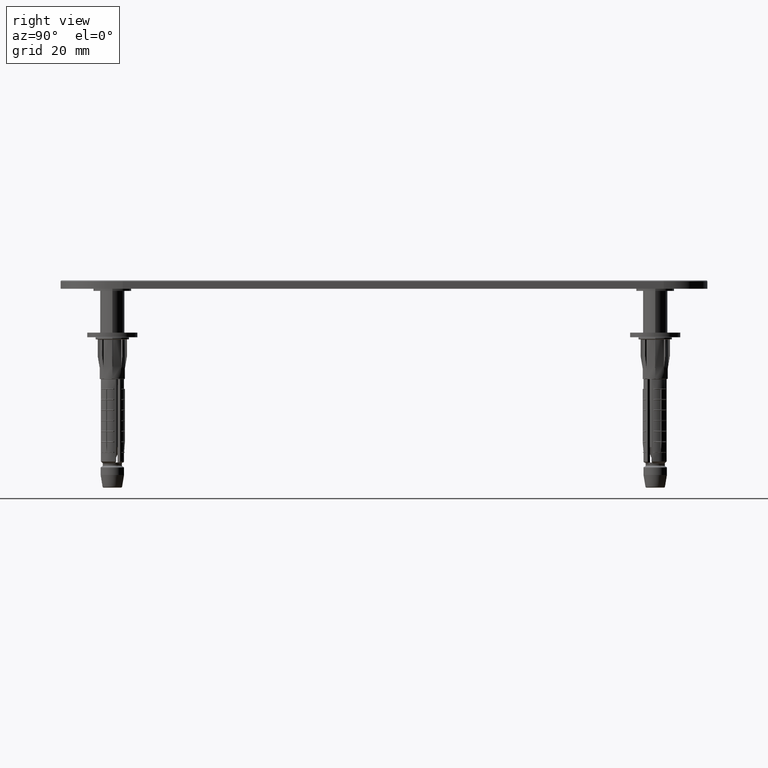
[diagram: clean part render]
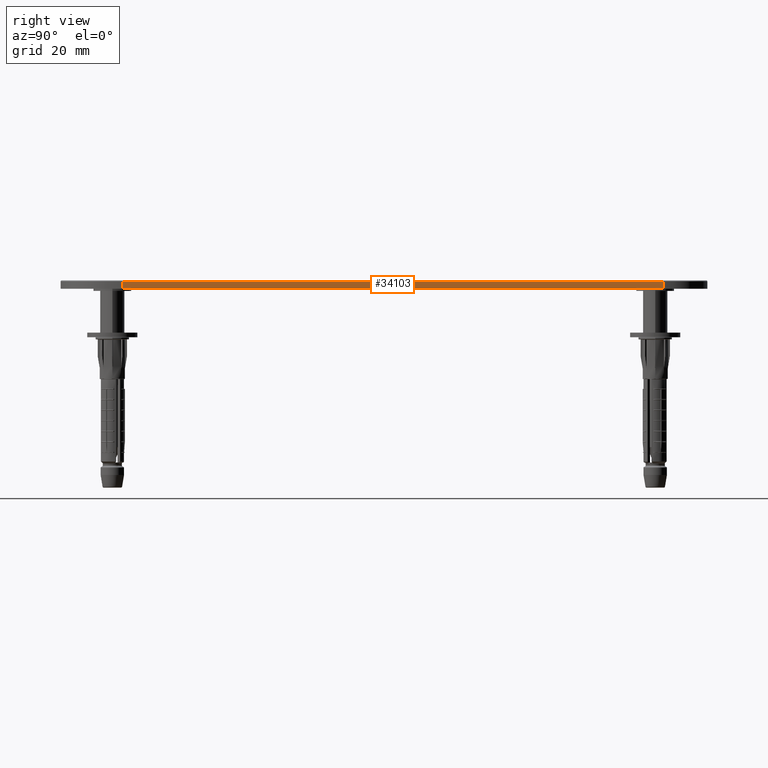
[diagram: same view with one face highlighted and labeled with its STEP entity id]
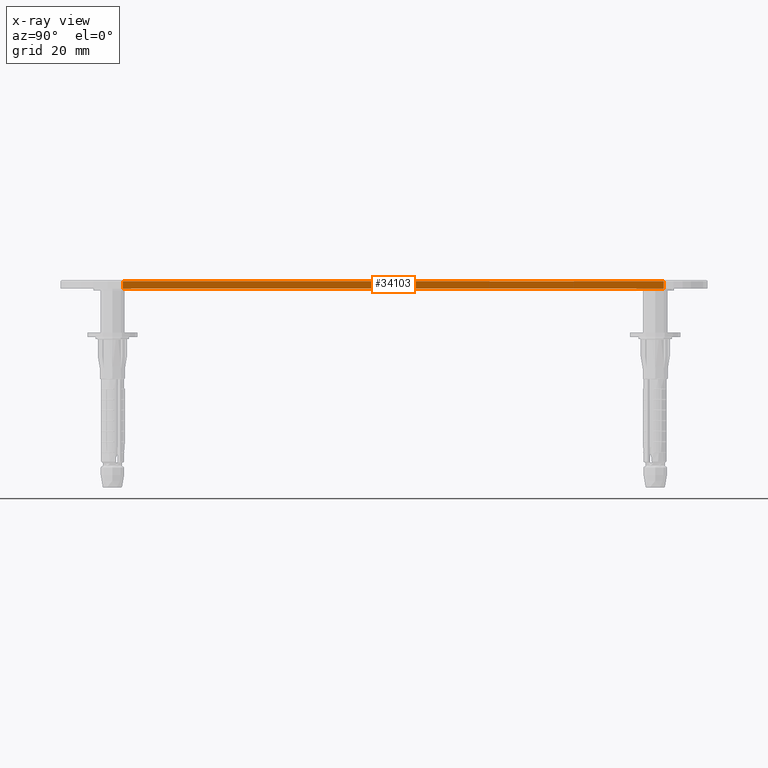
[diagram: x-ray of the same camera — body ghosted, the highlighted face saturated]
A machine part, right view. The second image highlights one B-rep face of the part: STEP entity #34103.
The next image is the same camera in x-ray: the body ghosted, the highlighted face saturated — about 0% of this face is hidden behind the body in this view.
In plain terms, the highlighted planar face has unit normal (-1, -0, 0).
Its self-contained STEP definition (entity closure, byte-faithful):
#757 = PLANE ( 'NONE',  #19043 ) ;
#1356 = FACE_OUTER_BOUND ( 'NONE', #20958, .T. ) ;
#1748 = DIRECTION ( 'NONE',  ( -0.000000000000000000, -0.000000000000000000, -1.000000000000000000 ) ) ;
#2415 = DIRECTION ( 'NONE',  ( -0.000000000000000000, -0.000000000000000000, -1.000000000000000000 ) ) ;
#2544 = CARTESIAN_POINT ( 'NONE',  ( 15.00000000000000711, 144.5000000000081570, 2.000000000000000000 ) ) ;
#3177 = VECTOR ( 'NONE', #31408, 1000.000000000000000 ) ;
#5224 = LINE ( 'NONE', #2544, #37603 ) ;
#5721 = VECTOR ( 'NONE', #15704, 1000.000000000000000 ) ;
#6207 = LINE ( 'NONE', #7188, #5721 ) ;
#7188 = CARTESIAN_POINT ( 'NONE',  ( 15.00000000000000711, 144.5000000000081570, 0.000000000000000000 ) ) ;
#10263 = EDGE_CURVE ( 'NONE', #35323, #13311, #5224, .T. ) ;
#10708 = CARTESIAN_POINT ( 'NONE',  ( 15.00000000000003908, 15.00000000000004086, 1.750000000000000000 ) ) ;
#11482 = LINE ( 'NONE', #10708, #3177 ) ;
#12170 = ORIENTED_EDGE ( 'NONE', *, *, #20598, .T. ) ;
#12981 = CARTESIAN_POINT ( 'NONE',  ( 15.00000000000000711, 144.5000000000081570, 2.000000000000000000 ) ) ;
#13311 = VERTEX_POINT ( 'NONE', #14640 ) ;
#13348 = CARTESIAN_POINT ( 'NONE',  ( 15.00000000000004086, 15.00000000000003730, 2.000000000000000000 ) ) ;
#14640 = CARTESIAN_POINT ( 'NONE',  ( 15.00000000000000711, 144.5000000000081570, 0.000000000000000000 ) ) ;
#15253 = EDGE_CURVE ( 'NONE', #32142, #17019, #29138, .T. ) ;
#15704 = DIRECTION ( 'NONE',  ( -2.545154134637626879E-16, 1.000000000000000000, -0.000000000000000000 ) ) ;
#15819 = EDGE_CURVE ( 'NONE', #17019, #13311, #6207, .T. ) ;
#16046 = ORIENTED_EDGE ( 'NONE', *, *, #10263, .F. ) ;
#17019 = VERTEX_POINT ( 'NONE', #36430 ) ;
#18460 = VECTOR ( 'NONE', #1748, 1000.000000000000000 ) ;
#19043 = AXIS2_PLACEMENT_3D ( 'NONE', #12981, #27550, #36682 ) ;
#20598 = EDGE_CURVE ( 'NONE', #35323, #32142, #11482, .T. ) ;
#20958 = EDGE_LOOP ( 'NONE', ( #16046, #12170, #23360, #28512 ) ) ;
#21972 = CARTESIAN_POINT ( 'NONE',  ( 15.00000000000004086, 15.00000000000003730, 1.750000000000000000 ) ) ;
#23360 = ORIENTED_EDGE ( 'NONE', *, *, #15253, .T. ) ;
#26739 = CARTESIAN_POINT ( 'NONE',  ( 15.00000000000000711, 144.5000000000081570, 1.750000000000000000 ) ) ;
#27550 = DIRECTION ( 'NONE',  ( -1.000000000000000000, -2.545154134637626879E-16, 0.000000000000000000 ) ) ;
#28512 = ORIENTED_EDGE ( 'NONE', *, *, #15819, .T. ) ;
#29138 = LINE ( 'NONE', #13348, #18460 ) ;
#31408 = DIRECTION ( 'NONE',  ( 2.545154134637626879E-16, -1.000000000000000000, -0.000000000000000000 ) ) ;
#32142 = VERTEX_POINT ( 'NONE', #21972 ) ;
#34103 = ADVANCED_FACE ( 'NONE', ( #1356 ), #757, .F. ) ;
#35323 = VERTEX_POINT ( 'NONE', #26739 ) ;
#36430 = CARTESIAN_POINT ( 'NONE',  ( 15.00000000000004086, 15.00000000000003730, 0.000000000000000000 ) ) ;
#36682 = DIRECTION ( 'NONE',  ( 2.545154134637626879E-16, -1.000000000000000000, 0.000000000000000000 ) ) ;
#37603 = VECTOR ( 'NONE', #2415, 1000.000000000000000 ) ;